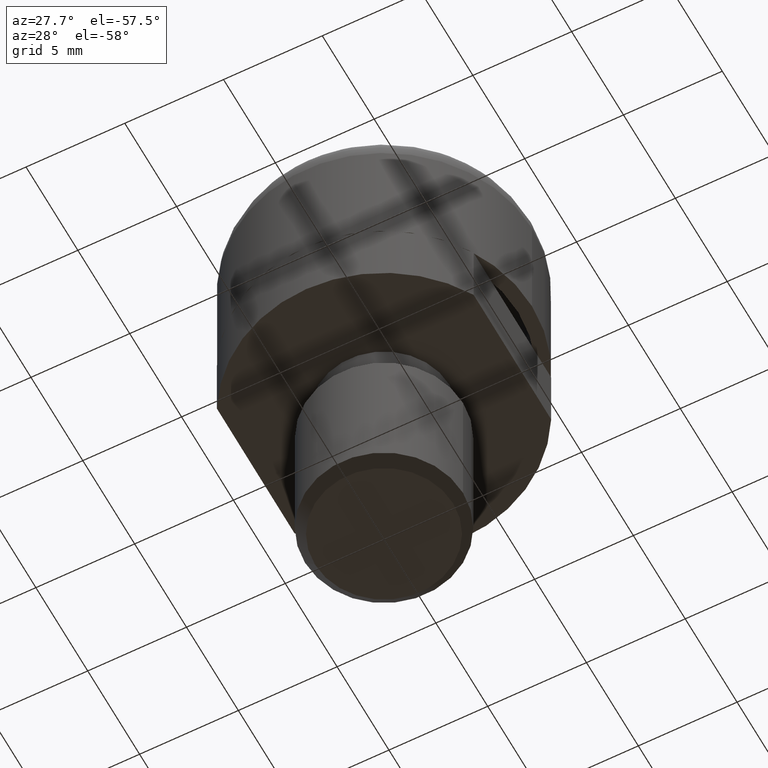
[diagram: clean part render]
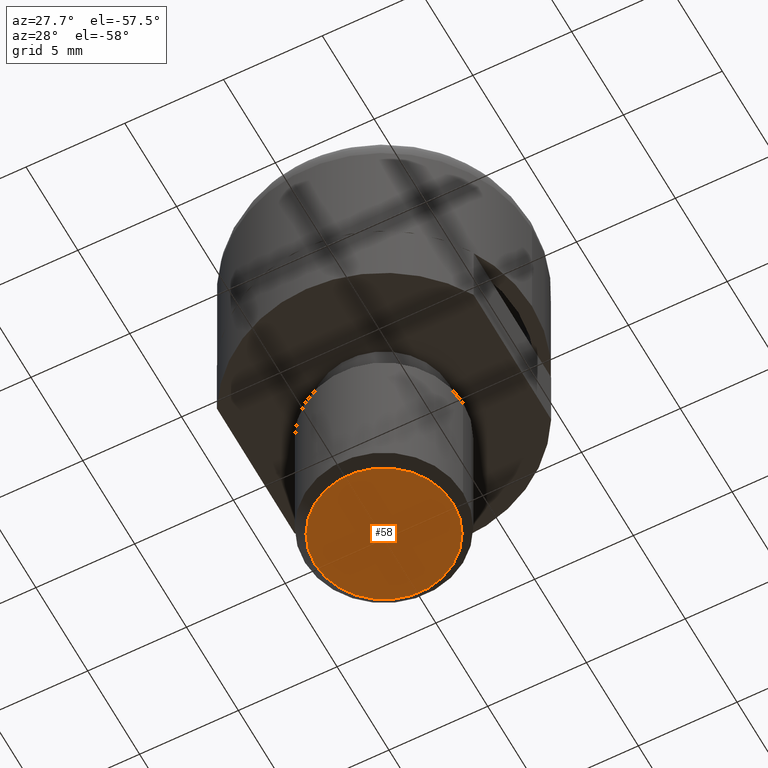
[diagram: same view with one face highlighted and labeled with its STEP entity id]
A machine part, auxiliary view. The second image highlights one B-rep face of the part: STEP entity #58.
In plain terms, the highlighted planar face has unit normal (0, 0, -1).
Its self-contained STEP definition (entity closure, byte-faithful):
#58 = ADVANCED_FACE ( 'NONE', ( #493 ), #946, .T. ) ;
#77 = ORIENTED_EDGE ( 'NONE', *, *, #686, .T. ) ;
#82 = AXIS2_PLACEMENT_3D ( 'NONE', #501, #575, #859 ) ;
#95 = DIRECTION ( 'NONE',  ( -1.000000000000000000, 0.0000000000000000000, 0.0000000000000000000 ) ) ;
#107 = AXIS2_PLACEMENT_3D ( 'NONE', #168, #612, #95 ) ;
#168 = CARTESIAN_POINT ( 'NONE',  ( 0.0000000000000000000, 0.0000000000000000000, -13.49999999999986100 ) ) ;
#180 = CARTESIAN_POINT ( 'NONE',  ( 3.500000000000000000, 0.0000000000000000000, -13.49999999999986100 ) ) ;
#218 = VERTEX_POINT ( 'NONE', #589 ) ;
#226 = CARTESIAN_POINT ( 'NONE',  ( 0.0000000000000000000, 0.0000000000000000000, -13.49999999999986100 ) ) ;
#264 = ORIENTED_EDGE ( 'NONE', *, *, #372, .T. ) ;
#372 = EDGE_CURVE ( 'NONE', #218, #915, #738, .T. ) ;
#445 = DIRECTION ( 'NONE',  ( -1.000000000000000000, 0.0000000000000000000, 0.0000000000000000000 ) ) ;
#459 = AXIS2_PLACEMENT_3D ( 'NONE', #226, #521, #445 ) ;
#493 = FACE_OUTER_BOUND ( 'NONE', #630, .T. ) ;
#501 = CARTESIAN_POINT ( 'NONE',  ( 0.0000000000000000000, 0.0000000000000000000, -13.49999999999986100 ) ) ;
#521 = DIRECTION ( 'NONE',  ( 0.0000000000000000000, 0.0000000000000000000, -1.000000000000000000 ) ) ;
#575 = DIRECTION ( 'NONE',  ( 0.0000000000000000000, 0.0000000000000000000, -1.000000000000000000 ) ) ;
#589 = CARTESIAN_POINT ( 'NONE',  ( -3.500000000000000000, 4.592425496802574000E-016, -13.49999999999986100 ) ) ;
#612 = DIRECTION ( 'NONE',  ( 0.0000000000000000000, 0.0000000000000000000, -1.000000000000000000 ) ) ;
#630 = EDGE_LOOP ( 'NONE', ( #77, #264 ) ) ;
#686 = EDGE_CURVE ( 'NONE', #915, #218, #939, .T. ) ;
#738 = CIRCLE ( 'NONE', #459, 3.500000000000000000 ) ;
#859 = DIRECTION ( 'NONE',  ( -1.000000000000000000, 0.0000000000000000000, 0.0000000000000000000 ) ) ;
#915 = VERTEX_POINT ( 'NONE', #180 ) ;
#939 = CIRCLE ( 'NONE', #107, 3.500000000000000000 ) ;
#946 = PLANE ( 'NONE',  #82 ) ;